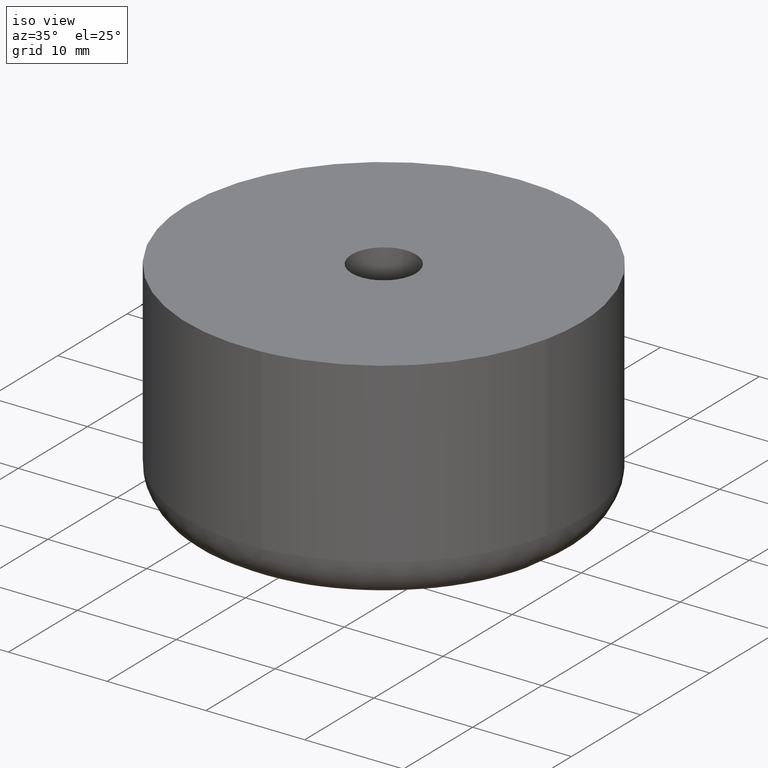
[diagram: clean part render]
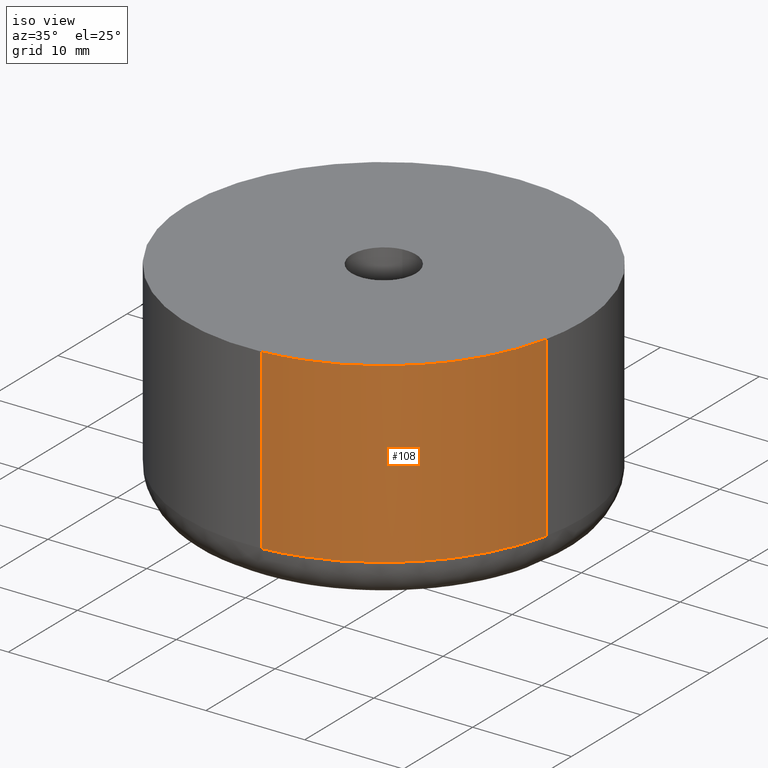
[diagram: same view with one face highlighted and labeled with its STEP entity id]
A machine part, iso view. The second image highlights one B-rep face of the part: STEP entity #108.
In plain terms, the highlighted face is a freeform B-spline surface patch.
Its self-contained STEP definition (entity closure, byte-faithful):
#44=CARTESIAN_POINT('',(19.546541232075629,-4.236539307712274,22.450000000001875));
#45=CARTESIAN_POINT('',(19.532969720462436,-4.297322978909762,22.450000000001886));
#46=CARTESIAN_POINT('',(16.299555177427159,-18.779041156710942,22.450000000001882));
#47=CARTESIAN_POINT('',(1.512847942178782,-19.942780254440912,22.450000000001868));
#48=CARTESIAN_POINT('',(1.456645673493703,-19.947203468913852,22.450000000001889));
#49=CARTESIAN_POINT('',(19.546541232075629,-4.236539307712274,3.538749999923005));
#50=CARTESIAN_POINT('',(19.532969720462436,-4.297322978909762,3.538749999923005));
#51=CARTESIAN_POINT('',(16.299555177427159,-18.779041156710942,3.538749999923005));
#52=CARTESIAN_POINT('',(1.512847942178782,-19.942780254440912,3.538749999923004));
#53=CARTESIAN_POINT('',(1.456645673493703,-19.947203468913852,3.538749999923006));
#61=(BOUNDED_SURFACE()B_SPLINE_SURFACE(2,1,((#44,#49),(#45,#50),(#46,#51),(#47,#52),(#48,#53)),.UNSPECIFIED.,.F.,.F.,.U.)B_SPLINE_SURFACE_WITH_KNOTS((3,1,1,3),(2,2),(0.0,0.131658696680241,26.460633174413161,26.592291628132401),(0.0,18.911250000078880),.UNSPECIFIED.)GEOMETRIC_REPRESENTATION_ITEM()RATIONAL_B_SPLINE_SURFACE(((0.907680205065056,0.907680205065056),(0.906977187522375,0.906977187522375),(0.765685424949238,0.765685424949238),(1.001171693742237,1.001171693742237),(1.002343387484473,1.002343387484473)))REPRESENTATION_ITEM('')SURFACE());
#62=CARTESIAN_POINT('',(19.519379982625448,-4.358188281122331,4.000000000000071));
#63=VERTEX_POINT('',#62);
#64=CARTESIAN_POINT('',(1.569170392331412,-19.938347581474670,4.000000000000124));
#65=VERTEX_POINT('',#64);
#66=CARTESIAN_POINT('',(19.519379982625452,-4.358188281122331,4.000000000000071));
#67=CARTESIAN_POINT('',(16.299563234985335,-18.779049087876711,4.000000000000100));
#68=CARTESIAN_POINT('',(1.569170392331412,-19.938347581474670,4.000000000000124));
#76=(BOUNDED_CURVE()B_SPLINE_CURVE(2,(#66,#67,#68),.UNSPECIFIED.,.F.,.U.)B_SPLINE_CURVE_WITH_KNOTS((3,3),(0.537286560993393,0.736331399697739),.UNSPECIFIED.)CURVE()GEOMETRIC_REPRESENTATION_ITEM()RATIONAL_B_SPLINE_CURVE((0.925662739272852,0.762027681298202,0.969723562912946))REPRESENTATION_ITEM(''));
#77=EDGE_CURVE('',#63,#65,#76,.T.);
#78=ORIENTED_EDGE('',*,*,#77,.F.);
#79=CARTESIAN_POINT('',(19.519379947706881,-4.358188437515530,22.0));
#80=VERTEX_POINT('',#79);
#81=CARTESIAN_POINT('',(19.519379947706881,-4.358188437515530,22.0));
#82=CARTESIAN_POINT('',(19.519379982625448,-4.358188281122331,4.000000000000071));
#83=QUASI_UNIFORM_CURVE('',1,(#81,#82),.UNSPECIFIED.,.F.,.U.);
#84=EDGE_CURVE('',#80,#63,#83,.T.);
#85=ORIENTED_EDGE('',*,*,#84,.F.);
#86=CARTESIAN_POINT('',(1.569170534429815,-19.938347570291452,22.0));
#87=VERTEX_POINT('',#86);
#88=CARTESIAN_POINT('',(19.519379947706874,-4.358188437515530,22.0));
#89=CARTESIAN_POINT('',(16.299563135519694,-18.779048990072631,22.000000000000007));
#90=CARTESIAN_POINT('',(1.569170534429815,-19.938347570291448,22.000000000000004));
#98=(BOUNDED_CURVE()B_SPLINE_CURVE(2,(#88,#89,#90),.UNSPECIFIED.,.F.,.U.)B_SPLINE_CURVE_WITH_KNOTS((3,3),(0.537286562304474,0.736331398476015),.UNSPECIFIED.)CURVE()GEOMETRIC_REPRESENTATION_ITEM()RATIONAL_B_SPLINE_CURVE((0.925662737117169,0.762027683670648,0.969723560363300))REPRESENTATION_ITEM(''));
#99=EDGE_CURVE('',#80,#87,#98,.T.);
#100=ORIENTED_EDGE('',*,*,#99,.T.);
#101=CARTESIAN_POINT('',(1.569170534429815,-19.938347570291452,22.0));
#102=CARTESIAN_POINT('',(1.569170392331412,-19.938347581474670,4.000000000000124));
#103=QUASI_UNIFORM_CURVE('',1,(#101,#102),.UNSPECIFIED.,.F.,.U.);
#104=EDGE_CURVE('',#87,#65,#103,.T.);
#105=ORIENTED_EDGE('',*,*,#104,.T.);
#106=EDGE_LOOP('',(#78,#85,#100,#105));
#107=FACE_OUTER_BOUND('',#106,.T.);
#108=ADVANCED_FACE('',(#107),#61,.T.);